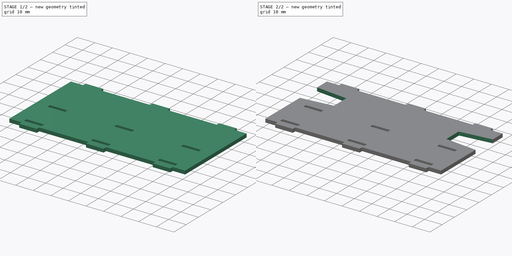
[diagram: build sequence overview — one tinted view per stage of 2, left to right]
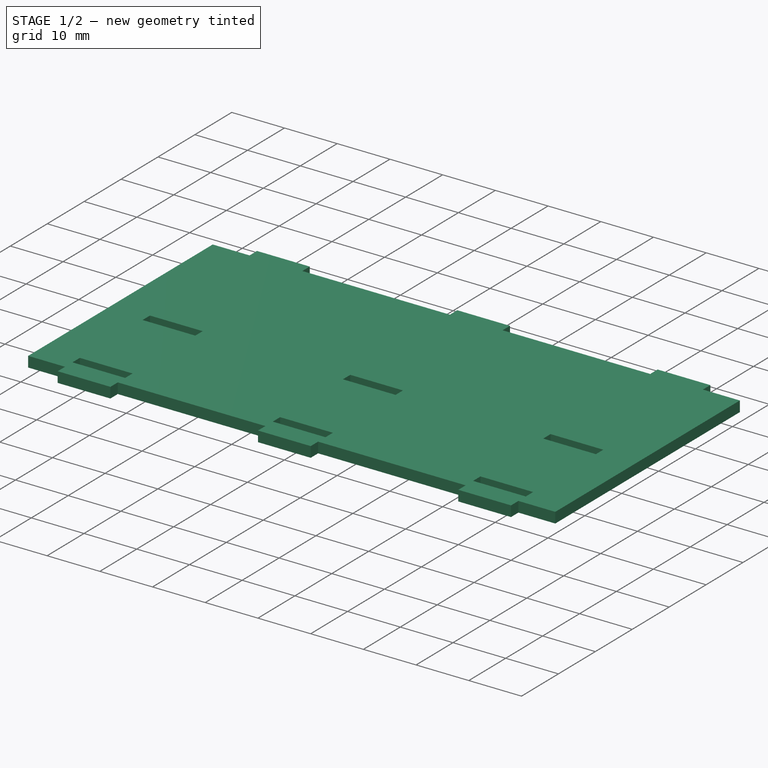
[diagram: stage 1 of 2 — iso view after this stage's code; geometry added in this stage tinted green]
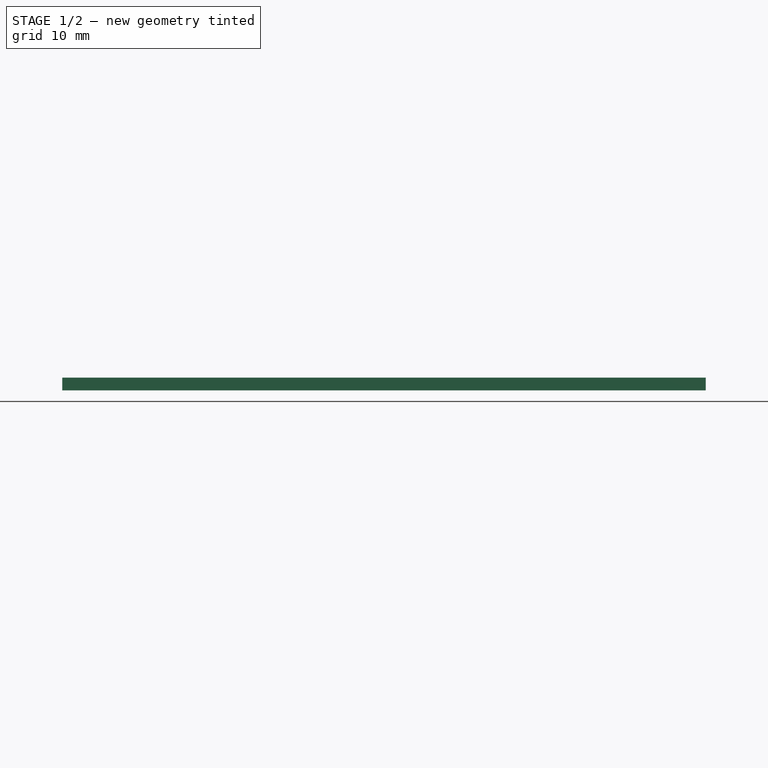
[diagram: stage 1 of 2 — front view after this stage's code; geometry added in this stage tinted green]
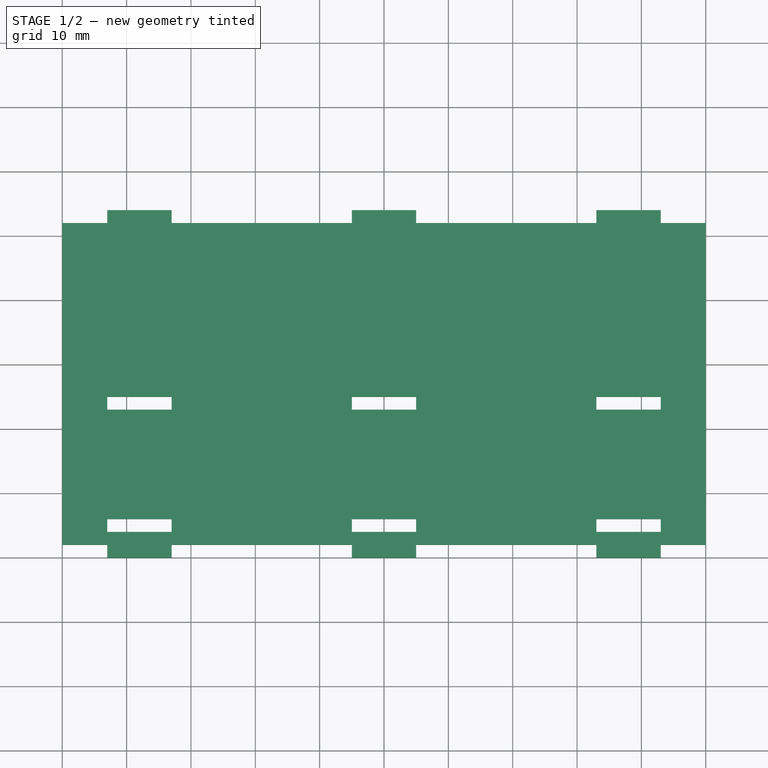
[diagram: stage 1 of 2 — top view after this stage's code; geometry added in this stage tinted green]
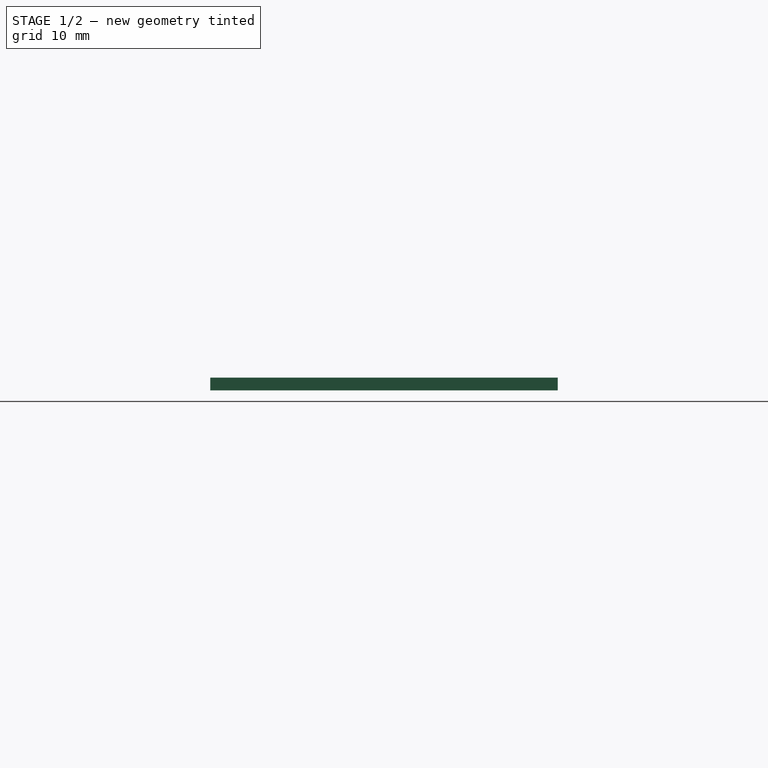
[diagram: stage 1 of 2 — right view after this stage's code; geometry added in this stage tinted green]
FCSTD DOCUMENT  (FreeCAD 0.18R16131 (Git))
Label: wall_12
License: All rights reserved
LicenseURL: http://en.wikipedia.org/wiki/All_rights_reserved
objects: Sketcher::SketchObject×4, PartDesign::Pocket×2, PartDesign::Pad×1, PartDesign::Body×1
note: 11 computed .brp shape members not serialized (recipe doc carries the construction recipe); baked Part::Feature solids carry a one-line shape summary decoded from their .brp

FEATURE [Sketcher::SketchObject] Sketch
  sketch-geometry (28):
    g0: LineSegment StartX=0 StartY=2 StartZ=0 EndX=0 EndY=52 EndZ=0
    g1: LineSegment StartX=0 StartY=52 StartZ=0 EndX=7 EndY=52 EndZ=0
    g2: LineSegment StartX=7 StartY=52 StartZ=0 EndX=7 EndY=54 EndZ=0
    g3: LineSegment StartX=7 StartY=54 StartZ=0 EndX=17 EndY=54 EndZ=0
    g4: LineSegment StartX=17 StartY=54 StartZ=0 EndX=17 EndY=52 EndZ=0
    g5: LineSegment StartX=17 StartY=52 StartZ=0 EndX=45 EndY=52 EndZ=0
    g6: LineSegment StartX=45 StartY=52 StartZ=0 EndX=45 EndY=54 EndZ=0
    g7: LineSegment StartX=45 StartY=54 StartZ=0 EndX=55 EndY=54 EndZ=0
    g8: LineSegment StartX=55 StartY=54 StartZ=0 EndX=55 EndY=52 EndZ=0
    g9: LineSegment StartX=55 StartY=52 StartZ=0 EndX=83 EndY=52 EndZ=0
    g10: LineSegment StartX=83 StartY=52 StartZ=0 EndX=83 EndY=54 EndZ=0
    g11: LineSegment StartX=83 StartY=54 StartZ=0 EndX=93 EndY=54 EndZ=0
    g12: LineSegment StartX=93 StartY=54 StartZ=0 EndX=93 EndY=52 EndZ=0
    g13: LineSegment StartX=93 StartY=52 StartZ=0 EndX=100 EndY=52 EndZ=0
    g14: LineSegment StartX=100 StartY=52 StartZ=0 EndX=100 EndY=2 EndZ=0
    g15: LineSegment StartX=100 StartY=2 StartZ=0 EndX=93 EndY=2 EndZ=0
    g16: LineSegment StartX=93 StartY=2 StartZ=0 EndX=93 EndY=-2e-16 EndZ=0
    g17: LineSegment StartX=93 StartY=-3e-16 StartZ=0 EndX=83 EndY=-3e-16 EndZ=0
    g18: LineSegment StartX=83 StartY=-3e-16 StartZ=0 EndX=83 EndY=2 EndZ=0
    g19: LineSegment StartX=83 StartY=2 StartZ=0 EndX=55 EndY=2 EndZ=0
    g20: LineSegment StartX=55 StartY=2 StartZ=0 EndX=55 EndY=-2e-16 EndZ=0
    g21: LineSegment StartX=55 StartY=-2e-16 StartZ=0 EndX=45 EndY=-2e-16 EndZ=0
    g22: LineSegment StartX=45 StartY=-2e-16 StartZ=0 EndX=45 EndY=2 EndZ=0
    g23: LineSegment StartX=45 StartY=2 StartZ=0 EndX=17 EndY=2 EndZ=0
    g24: LineSegment StartX=17 StartY=2 StartZ=0 EndX=17 EndY=0 EndZ=0
    g25: LineSegment StartX=17 StartY=0 StartZ=0 EndX=7 EndY=0 EndZ=0
    g26: LineSegment StartX=7 StartY=0 StartZ=0 EndX=7 EndY=2 EndZ=0
    g27: LineSegment StartX=7 StartY=2 StartZ=0 EndX=0 EndY=2 EndZ=0
  constraints (84):
    c: Coincident(g0,g1)
    c: Coincident(g1,g2)
    c: Coincident(g2,g3)
    c: Coincident(g3,g4)
    c: Coincident(g4,g5)
    c: Coincident(g5,g6)
    c: Coincident(g6,g7)
    c: Coincident(g7,g8)
    c: Coincident(g8,g9)
    c: Coincident(g9,g10)
    c: Coincident(g10,g11)
    c: Coincident(g11,g12)
    c: Coincident(g12,g13)
    c: Coincident(g13,g14)
    c: Coincident(g14,g15)
    c: Coincident(g15,g16)
    c: Coincident(g16,g17)
    c: Coincident(g17,g18)
    c: Coincident(g18,g19)
    c: Coincident(g19,g20)
    c: Coincident(g20,g21)
    c: Coincident(g21,g22)
    c: Coincident(g22,g23)
    c: Coincident(g23,g24)
    c: Coincident(g24,g25)
    c: Coincident(g25,g26)
    c: Coincident(g26,g27)
    c: Coincident(g27,g0)
    c: Vertical(g0)
    c: Vertical(g26)
    c: Vertical(g24)
    c: Vertical(g22)
    c: Vertical(g20)
    c: Vertical(g18)
    c: Vertical(g16)
    c: Vertical(g14)
    c: Vertical(g12)
    c: Vertical(g10)
    c: Vertical(g8)
    c: Vertical(g6)
    c: Vertical(g4)
    c: Horizontal(g1)
    c: Horizontal(g3)
    c: Horizontal(g7)
    c: Horizontal(g11)
    c: Horizontal(g9)
    c: Horizontal(g5)
    c: Horizontal(g13)
    c: Horizontal(g15)
    c: Horizontal(g17)
    c: Horizontal(g19)
    c: Horizontal(g21)
    c: Horizontal(g23)
    c: Horizontal(g27)
    c: Equal(g3,g7)
    c: Equal(g7,g11)
    c: Equal(g11,g17)
    c: Equal(g17,g21)
    c: Equal(g21,g25)
    c: DistanceX(g2,g3) = 10
    c: Equal(g5,g9)
    c: Equal(g9,g23)
    c: Equal(g23,g19)
    c: Equal(g27,g1)
    c: Equal(g1,g13)
    c: Equal(g13,g15)
    c: DistanceX(g1,g1) = 7
    c: PointOnObject(g0,g-2)
    c: DistanceX(g-1,g14) = 100
    c: Equal(g14,g0)
    c: DistanceY(g0,g0) = 50
    c: DistanceY(g26,g26) = 2
    c: PointOnObject(g25,g-1)
    c: Equal(g26,g24)
    c: Equal(g24,g22)
    c: Equal(g22,g20)
    c: Equal(g20,g18)
    c: Equal(g18,g16)
    c: Horizontal(g25)
    c: Horizontal(g1,g4)
    c: Horizontal(g4,g8)
    c: Equal(g2,g6)
    c: Equal(g6,g10)
    c: DistanceY(g2,g2) = 2
FEATURE [Sketcher::SketchObject] CopySketch
  MapMode = 5
  Support = -> [XY_Plane]
  sketch-geometry (28):
    g0: LineSegment StartX=0 StartY=2 StartZ=0 EndX=0 EndY=52 EndZ=0
    g1: LineSegment StartX=0 StartY=52 StartZ=0 EndX=7 EndY=52 EndZ=0
    g2: LineSegment StartX=7 StartY=52 StartZ=0 EndX=7 EndY=54 EndZ=0
    g3: LineSegment StartX=7 StartY=54 StartZ=0 EndX=17 EndY=54 EndZ=0
    g4: LineSegment StartX=17 StartY=54 StartZ=0 EndX=17 EndY=52 EndZ=0
    g5: LineSegment StartX=17 StartY=52 StartZ=0 EndX=45 EndY=52 EndZ=0
    g6: LineSegment StartX=45 StartY=52 StartZ=0 EndX=45 EndY=54 EndZ=0
    g7: LineSegment StartX=45 StartY=54 StartZ=0 EndX=55 EndY=54 EndZ=0
    g8: LineSegment StartX=55 StartY=54 StartZ=0 EndX=55 EndY=52 EndZ=0
    g9: LineSegment StartX=55 StartY=52 StartZ=0 EndX=83 EndY=52 EndZ=0
    g10: LineSegment StartX=83 StartY=52 StartZ=0 EndX=83 EndY=54 EndZ=0
    g11: LineSegment StartX=83 StartY=54 StartZ=0 EndX=93 EndY=54 EndZ=0
    g12: LineSegment StartX=93 StartY=54 StartZ=0 EndX=93 EndY=52 EndZ=0
    g13: LineSegment StartX=93 StartY=52 StartZ=0 EndX=100 EndY=52 EndZ=0
    g14: LineSegment StartX=100 StartY=52 StartZ=0 EndX=100 EndY=2 EndZ=0
    g15: LineSegment StartX=100 StartY=2 StartZ=0 EndX=93 EndY=2 EndZ=0
    g16: LineSegment StartX=93 StartY=2 StartZ=0 EndX=93 EndY=-2e-16 EndZ=0
    g17: LineSegment StartX=93 StartY=-3e-16 StartZ=0 EndX=83 EndY=-3e-16 EndZ=0
    g18: LineSegment StartX=83 StartY=-3e-16 StartZ=0 EndX=83 EndY=2 EndZ=0
    g19: LineSegment StartX=83 StartY=2 StartZ=0 EndX=55 EndY=2 EndZ=0
    g20: LineSegment StartX=55 StartY=2 StartZ=0 EndX=55 EndY=-2e-16 EndZ=0
    g21: LineSegment StartX=55 StartY=-2e-16 StartZ=0 EndX=45 EndY=-2e-16 EndZ=0
    g22: LineSegment StartX=45 StartY=-2e-16 StartZ=0 EndX=45 EndY=2 EndZ=0
    g23: LineSegment StartX=45 StartY=2 StartZ=0 EndX=17 EndY=2 EndZ=0
    g24: LineSegment StartX=17 StartY=2 StartZ=0 EndX=17 EndY=0 EndZ=0
    g25: LineSegment StartX=17 StartY=0 StartZ=0 EndX=7 EndY=0 EndZ=0
    g26: LineSegment StartX=7 StartY=0 StartZ=0 EndX=7 EndY=2 EndZ=0
    g27: LineSegment StartX=7 StartY=2 StartZ=0 EndX=0 EndY=2 EndZ=0
  constraints (84):
    c: Coincident(g0,g1)
    c: Coincident(g1,g2)
    c: Coincident(g2,g3)
    c: Coincident(g3,g4)
    c: Coincident(g4,g5)
    c: Coincident(g5,g6)
    c: Coincident(g6,g7)
    c: Coincident(g7,g8)
    c: Coincident(g8,g9)
    c: Coincident(g9,g10)
    c: Coincident(g10,g11)
    c: Coincident(g11,g12)
    c: Coincident(g12,g13)
    c: Coincident(g13,g14)
    c: Coincident(g14,g15)
    c: Coincident(g15,g16)
    c: Coincident(g16,g17)
    c: Coincident(g17,g18)
    c: Coincident(g18,g19)
    c: Coincident(g19,g20)
    c: Coincident(g20,g21)
    c: Coincident(g21,g22)
    c: Coincident(g22,g23)
    c: Coincident(g23,g24)
    c: Coincident(g24,g25)
    c: Coincident(g25,g26)
    c: Coincident(g26,g27)
    c: Coincident(g27,g0)
    c: Vertical(g0)
    c: Vertical(g26)
    c: Vertical(g24)
    c: Vertical(g22)
    c: Vertical(g20)
    c: Vertical(g18)
    c: Vertical(g16)
    c: Vertical(g14)
    c: Vertical(g12)
    c: Vertical(g10)
    c: Vertical(g8)
    c: Vertical(g6)
    c: Vertical(g4)
    c: Horizontal(g1)
    c: Horizontal(g3)
    c: Horizontal(g7)
    c: Horizontal(g11)
    c: Horizontal(g9)
    c: Horizontal(g5)
    c: Horizontal(g13)
    c: Horizontal(g15)
    c: Horizontal(g17)
    c: Horizontal(g19)
    c: Horizontal(g21)
    c: Horizontal(g23)
    c: Horizontal(g27)
    c: Equal(g3,g7)
    c: Equal(g7,g11)
    c: Equal(g11,g17)
    c: Equal(g17,g21)
    c: Equal(g21,g25)
    c: DistanceX(g2,g3) = 10
    c: Equal(g5,g9)
    c: Equal(g9,g23)
    c: Equal(g23,g19)
    c: Equal(g27,g1)
    c: Equal(g1,g13)
    c: Equal(g13,g15)
    c: DistanceX(g1,g1) = 7
    c: PointOnObject(g0,g-2)
    c: DistanceX(g-1,g14) = 100
    c: Equal(g14,g0)
    c: DistanceY(g0,g0) = 50
    c: DistanceY(g26,g26) = 2
    c: PointOnObject(g25,g-1)
    c: Equal(g26,g24)
    c: Equal(g24,g22)
    c: Equal(g22,g20)
    c: Equal(g20,g18)
    c: Equal(g18,g16)
    c: Horizontal(g25)
    c: Horizontal(g1,g4)
    c: Horizontal(g4,g8)
    c: Equal(g2,g6)
    c: Equal(g6,g10)
    c: DistanceY(g2,g2) = 2
FEATURE [PartDesign::Pad] Pad
  Length = 2
  Length2 = 100
  Profile = -> CopySketch
  Type = 0
FEATURE [Sketcher::SketchObject] CopySketch001  label="encoches"
  MapMode = 5
  Support = -> [XY_Plane]
  sketch-geometry (24):
    g0: LineSegment StartX=7 StartY=25 StartZ=0 EndX=17 EndY=25 EndZ=0
    g1: LineSegment StartX=17 StartY=25 StartZ=0 EndX=17 EndY=23 EndZ=0
    g2: LineSegment StartX=17 StartY=23 StartZ=0 EndX=7 EndY=23 EndZ=0
    g3: LineSegment StartX=7 StartY=23 StartZ=0 EndX=7 EndY=25 EndZ=0
    g4: LineSegment StartX=45 StartY=23 StartZ=0 EndX=55 EndY=23 EndZ=0
    g5: LineSegment StartX=55 StartY=23 StartZ=0 EndX=55 EndY=25 EndZ=0
    g6: LineSegment StartX=55 StartY=25 StartZ=0 EndX=45 EndY=25 EndZ=0
    g7: LineSegment StartX=45 StartY=25 StartZ=0 EndX=45 EndY=23 EndZ=0
    g8: LineSegment StartX=83 StartY=23 StartZ=0 EndX=93 EndY=23 EndZ=0
    g9: LineSegment StartX=93 StartY=23 StartZ=0 EndX=93 EndY=25 EndZ=0
    g10: LineSegment StartX=93 StartY=25 StartZ=0 EndX=83 EndY=25 EndZ=0
    g11: LineSegment StartX=83 StartY=25 StartZ=0 EndX=83 EndY=23 EndZ=0
    g12: LineSegment StartX=17 StartY=6 StartZ=0 EndX=7 EndY=6 EndZ=0
    g13: LineSegment StartX=7 StartY=4 StartZ=0 EndX=17 EndY=4 EndZ=0
    g14: LineSegment StartX=17 StartY=4 StartZ=0 EndX=17 EndY=6 EndZ=0
    g15: LineSegment StartX=7 StartY=6 StartZ=0 EndX=7 EndY=4 EndZ=0
    g16: LineSegment StartX=45 StartY=4 StartZ=0 EndX=55 EndY=4 EndZ=0
    g17: LineSegment StartX=55 StartY=4 StartZ=0 EndX=55 EndY=6 EndZ=0
    g18: LineSegment StartX=55 StartY=6 StartZ=0 EndX=45 EndY=6 EndZ=0
    g19: LineSegment StartX=45 StartY=6 StartZ=0 EndX=45 EndY=4 EndZ=0
    g20: LineSegment StartX=83 StartY=6 StartZ=0 EndX=93 EndY=6 EndZ=0
    g21: LineSegment StartX=93 StartY=6 StartZ=0 EndX=93 EndY=4 EndZ=0
    g22: LineSegment StartX=93 StartY=4 StartZ=0 EndX=83 EndY=4 EndZ=0
    g23: LineSegment StartX=83 StartY=4 StartZ=0 EndX=83 EndY=6 EndZ=0
  constraints (72):
    c: Coincident(g0,g1)
    c: Coincident(g2,g3)
    c: Coincident(g3,g0)
    c: Horizontal(g0)
    c: Horizontal(g2)
    c: Vertical(g1)
    c: Vertical(g3)
    c: DistanceX(g0,g0) = 10
    c: DistanceY(g1,g1) = 2
    c: DistanceY(g-1,g2) = 23
    c: DistanceX(g-1,g2) = 7
    c: Coincident(g4,g5)
    c: Coincident(g5,g6)
    c: Coincident(g6,g7)
    c: Coincident(g7,g4)
    c: Horizontal(g4)
    c: Horizontal(g6)
    c: Vertical(g5)
    c: Vertical(g7)
    c: Equal(g0,g4) = 10
    c: Equal(g1,g5) = 2
    c: Coincident(g8,g9)
    c: Coincident(g9,g10)
    c: Coincident(g10,g11)
    c: Coincident(g11,g8)
    c: Horizontal(g8)
    c: Horizontal(g10)
    c: Vertical(g9)
    c: Vertical(g11)
    c: Equal(g0,g8) = 10
    c: Equal(g1,g9) = 2
    c: DistanceX(g1,g6) = 28
    c: DistanceX(g5,g10) = 28
    c: Horizontal(g8,g4)
    c: Horizontal(g4,g2)
    c: Coincident(g1,g2)
    c: Coincident(g13,g14)
    c: Coincident(g12,g15)
    c: Coincident(g15,g13)
    c: Horizontal(g13)
    c: Horizontal(g12)
    c: Vertical(g14)
    c: Vertical(g15)
    c: Equal(g0,g13) = 10
    c: Equal(g1,g14) = 2
    c: Coincident(g14,g12)
    c: Coincident(g16,g17)
    c: Coincident(g18,g19)
    c: Coincident(g19,g16)
    c: Horizontal(g16)
    c: Horizontal(g18)
    c: Vertical(g17)
    c: Vertical(g19)
    c: Equal(g0,g16) = 10
    c: Equal(g1,g17) = 2
    c: Coincident(g17,g18)
    c: Coincident(g20,g21)
    c: Coincident(g22,g23)
    c: Coincident(g23,g20)
    c: Horizontal(g20)
    c: Horizontal(g22)
    c: Vertical(g21)
    c: Vertical(g23)
    c: Equal(g0,g20) = 10
    c: Equal(g1,g21) = 2
    c: Coincident(g21,g22)
    c: Vertical(g22,g8)
    c: Vertical(g18,g4)
    c: Vertical(g12,g2)
    c: DistanceY(g-1,g12) = 6
    c: Horizontal(g12,g18)
    c: Horizontal(g13,g22)
FEATURE [PartDesign::Pocket] Pocket
  BaseFeature = -> Pad
  Length = 5
  Length2 = 100
  Profile = -> CopySketch001
  Reversed = true
  Type = 1
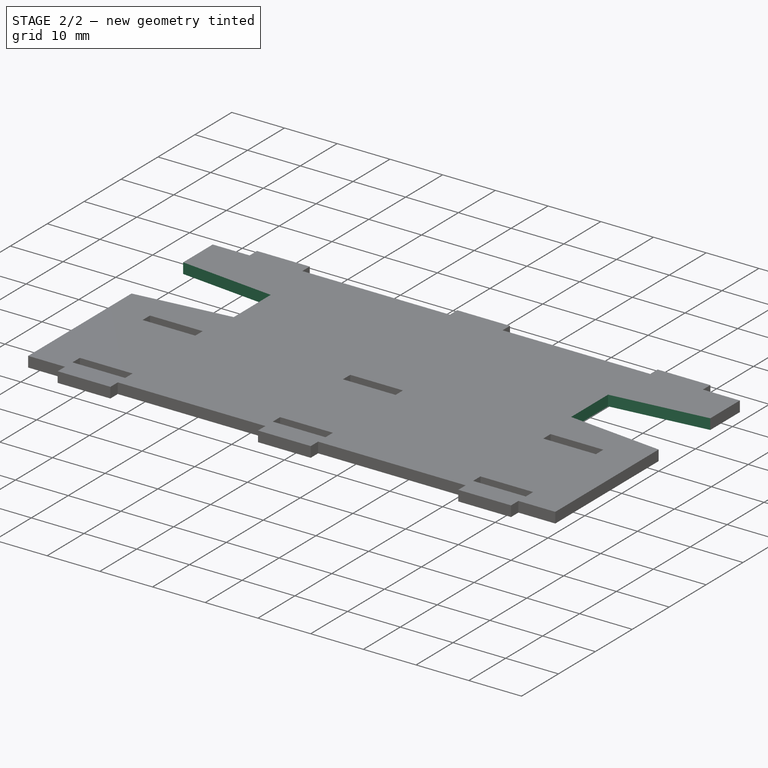
[diagram: stage 2 of 2 — iso view after this stage's code; geometry added in this stage tinted green]
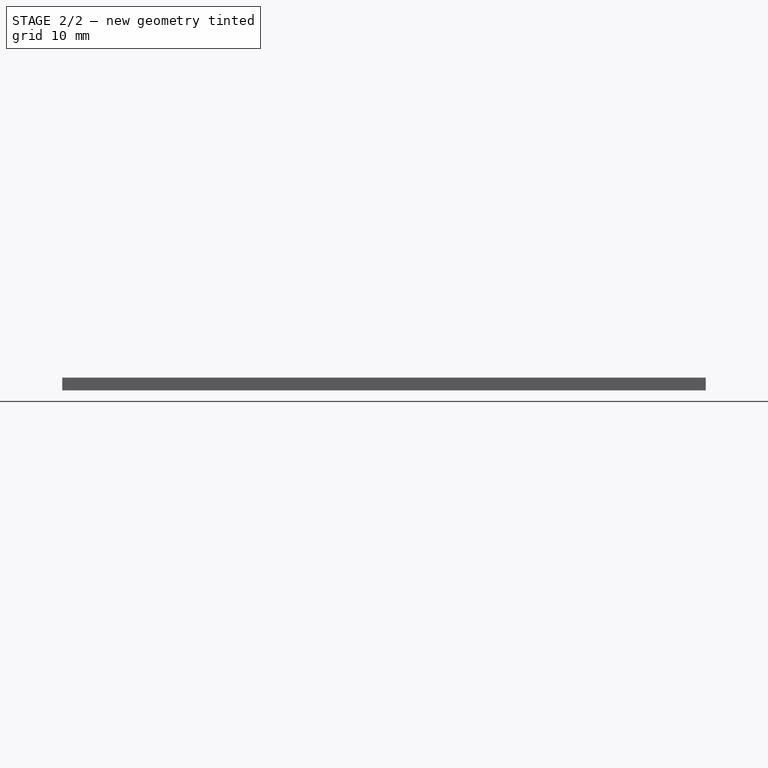
[diagram: stage 2 of 2 — front view after this stage's code; geometry added in this stage tinted green]
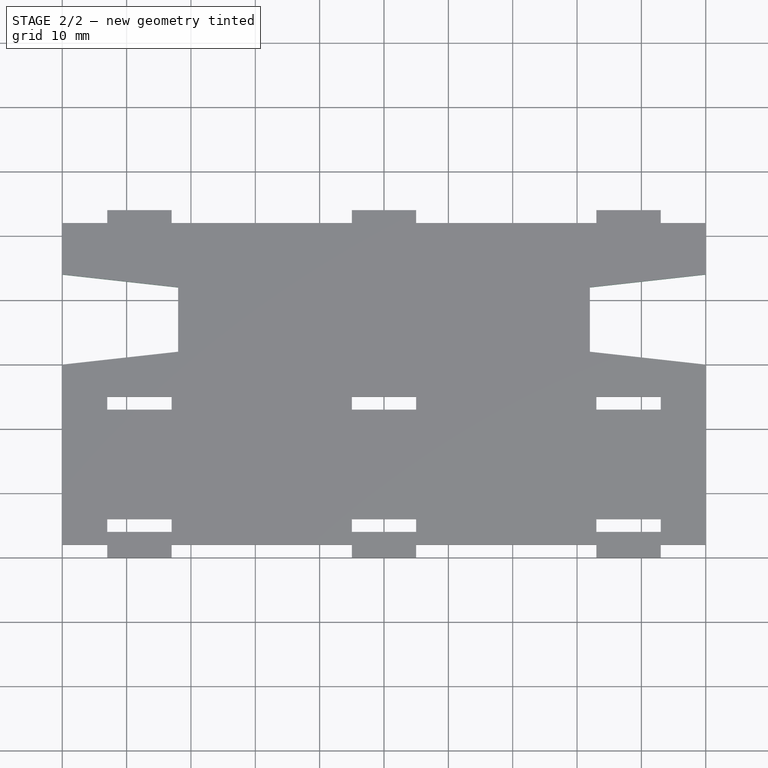
[diagram: stage 2 of 2 — top view after this stage's code; geometry added in this stage tinted green]
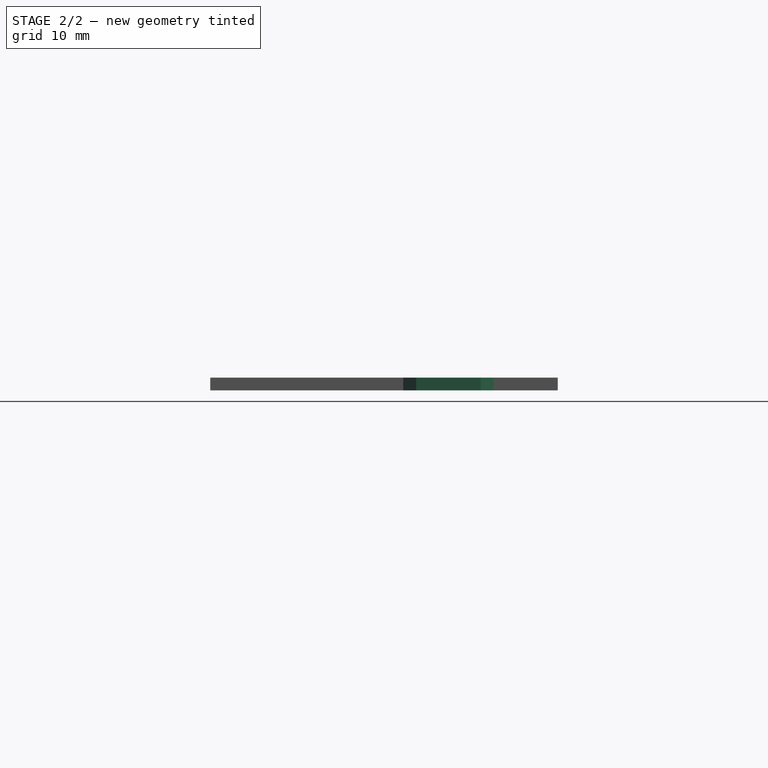
[diagram: stage 2 of 2 — right view after this stage's code; geometry added in this stage tinted green]
FEATURE [Sketcher::SketchObject] Sketch001
  MapMode = 5
  Support = -> [XY_Plane]
  sketch-geometry (8):
    g0: LineSegment StartX=0 StartY=44 StartZ=0 EndX=18 EndY=42 EndZ=0
    g1: LineSegment StartX=18 StartY=42 StartZ=0 EndX=18 EndY=32 EndZ=0
    g2: LineSegment StartX=18 StartY=32 StartZ=0 EndX=0 EndY=30 EndZ=0
    g3: LineSegment StartX=0 StartY=30 StartZ=0 EndX=0 EndY=44 EndZ=0
    g4: LineSegment StartX=100 StartY=44 StartZ=0 EndX=82 EndY=42 EndZ=0
    g5: LineSegment StartX=82 StartY=42 StartZ=0 EndX=82 EndY=32 EndZ=0
    g6: LineSegment StartX=82 StartY=32 StartZ=0 EndX=100 EndY=30 EndZ=0
    g7: LineSegment StartX=100 StartY=30 StartZ=0 EndX=100 EndY=44 EndZ=0
  constraints (23):
    c: Coincident(g0,g1)
    c: Coincident(g1,g2)
    c: Coincident(g2,g3)
    c: Coincident(g3,g0)
    c: Vertical(g1)
    c: Tangent(g3,g-2)
    c: DistanceY(g-1,g2) = 30
    c: DistanceY(g3,g3) = 14
    c: Equal(g2,g0)
    c: DistanceX(g2,g1) = 18
    c: DistanceY(g1,g1) = 10
    c: Coincident(g4,g5)
    c: Coincident(g5,g6)
    c: Coincident(g6,g7)
    c: Coincident(g7,g4)
    c: Vertical(g5)
    c: Equal(g3,g7) = 18
    c: Equal(g1,g5) = 10
    c: Vertical(g7)
    c: Horizontal(g6,g2)
    c: Horizontal(g4,g0)
    c: DistanceX(g2,g6) = 100
    c: Equal(g6,g2)
FEATURE [PartDesign::Pocket] Pocket001
  BaseFeature = -> Pocket
  Length = 5
  Length2 = 100
  Profile = -> Sketch001
  Reversed = true
  Type = 1
FEATURE [PartDesign::Body] Body
  Group = -> [CopySketch,Pad,CopySketch001,Pocket,Sketch001,Pocket001]
  Origin = -> Origin
  Tip = -> Pocket001
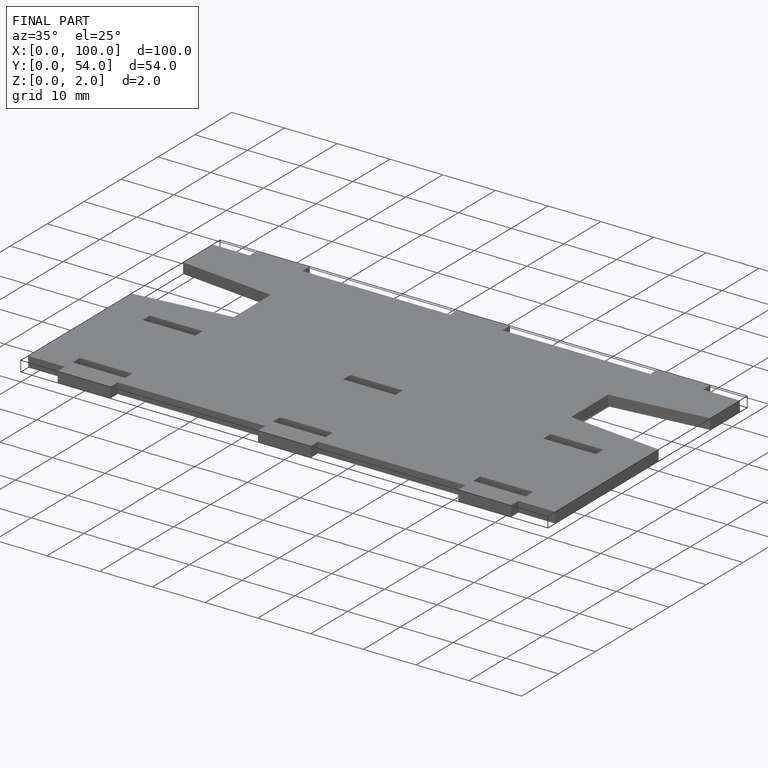
[diagram: finished part — iso view with bounding-box wireframe]
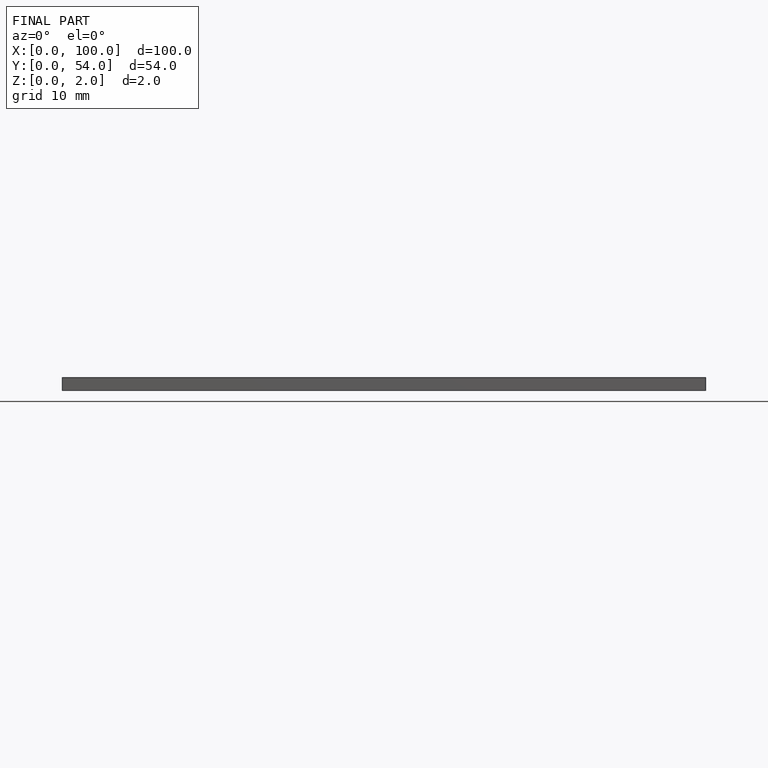
[diagram: finished part — front view with bounding-box wireframe]
